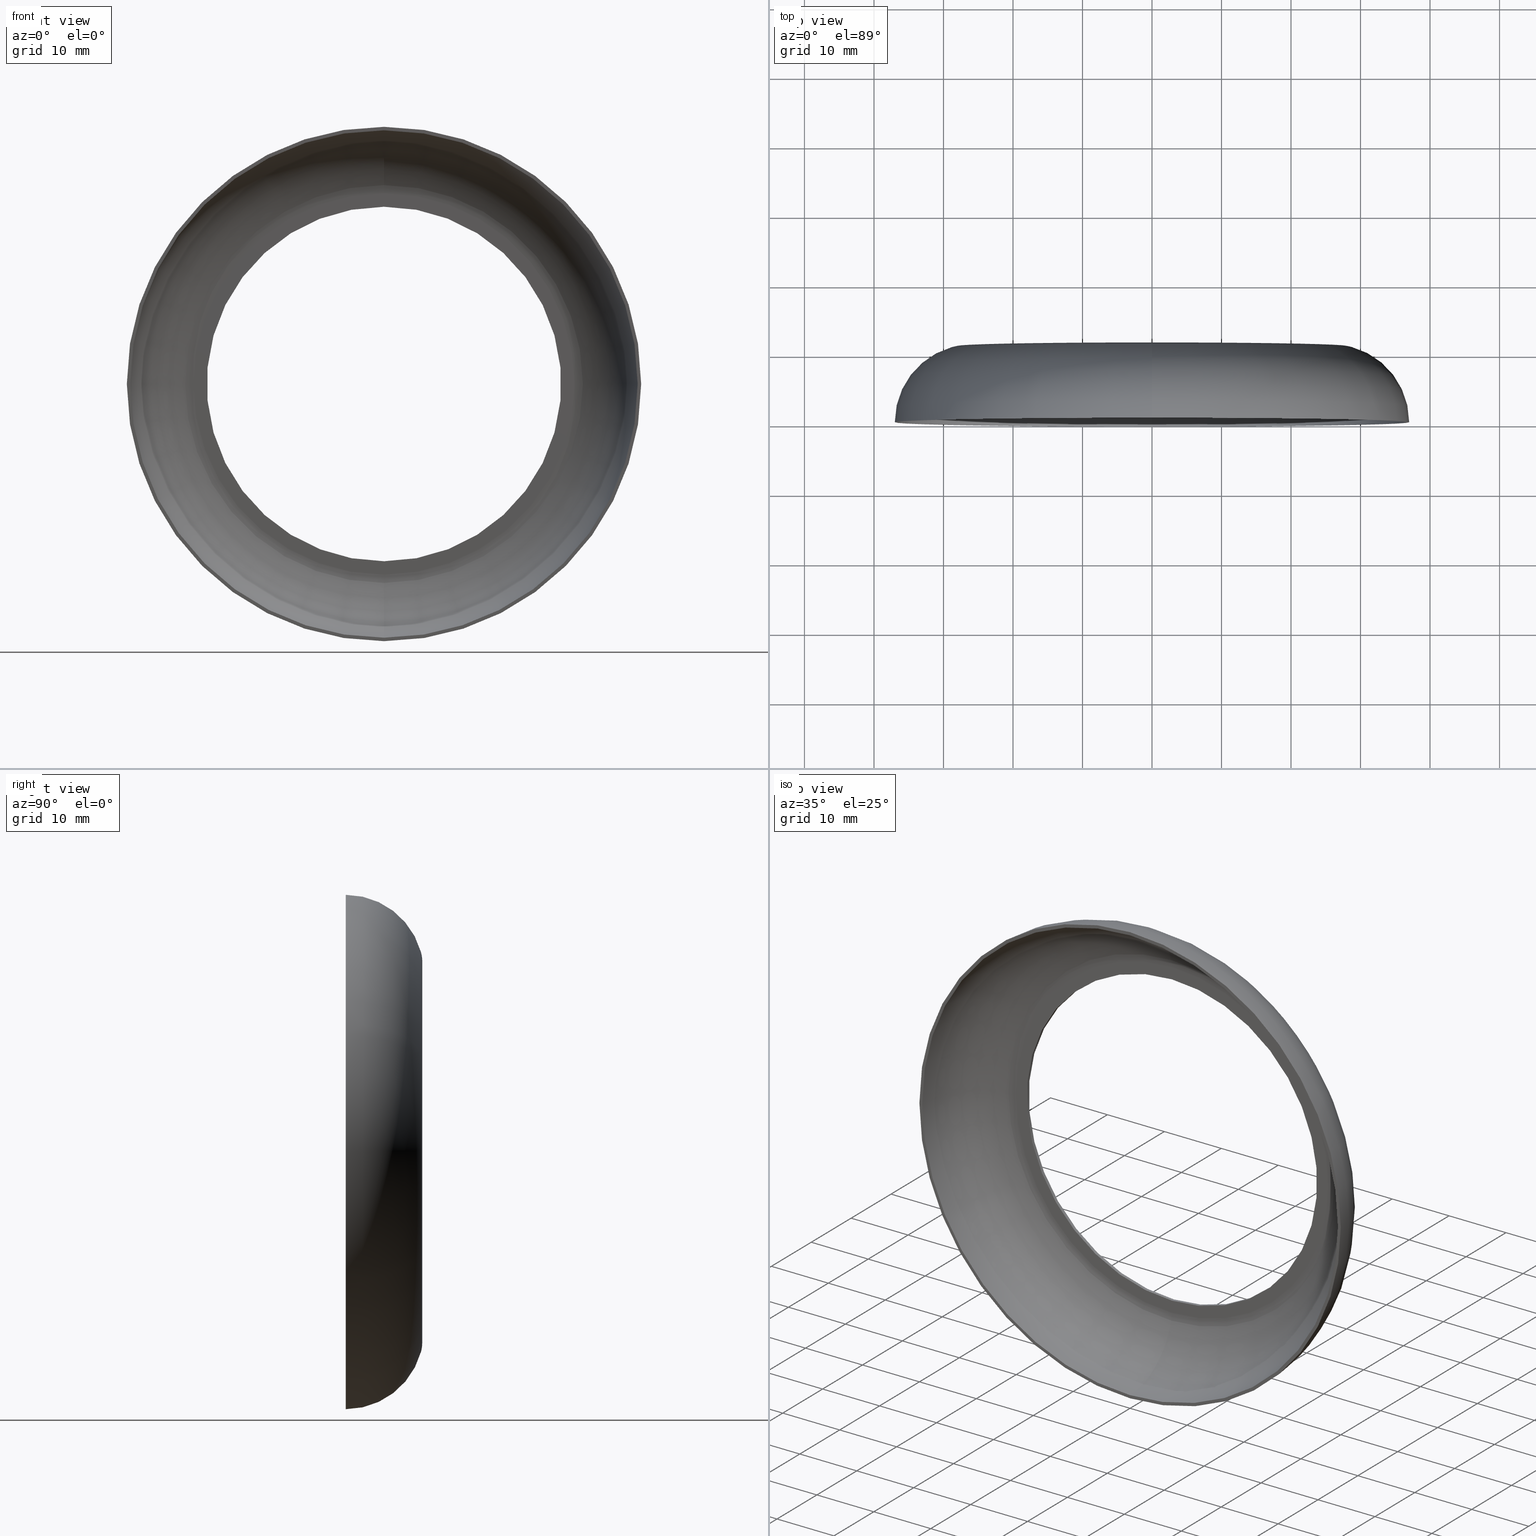
[diagram: canonical four-view strip — front | top / right | iso, engineering-drawing reading convention]
A machine part, canonical four-view strip (front | top / right | iso — engineering-drawing reading convention). The complete STEP part file that produces these views, byte-faithful:
ISO-10303-21;
HEADER;
FILE_DESCRIPTION (( 'STEP AP214' ),
    '1' );
FILE_NAME ('���. KRT501.STEP',
    '2014-06-03T12:35:48',
    ( '' ),
    ( '' ),
    'SwSTEP 2.0',
    'SolidWorks 2014',
    '' );
FILE_SCHEMA (( 'AUTOMOTIVE_DESIGN' ));
ENDSEC;

DATA;
#1 = CIRCLE ( 'NONE', #109, 37.00000000000000000 ) ;
#2 = AXIS2_PLACEMENT_3D ( 'NONE', #231, #300, #261 ) ;
#3 = EDGE_LOOP ( 'NONE', ( #71, #121, #37, #380 ) ) ;
#4 = CARTESIAN_POINT ( 'NONE',  ( 0.0000000000000000000, 11.00000000000000000, 0.0000000000000000000 ) ) ;
#5 = AXIS2_PLACEMENT_3D ( 'NONE', #256, #318, #324 ) ;
#6 = SHAPE_DEFINITION_REPRESENTATION ( #372, #235 ) ;
#7 = CIRCLE ( 'NONE', #363, 10.72222222222221800 ) ;
#8 = PRESENTATION_LAYER_ASSIGNMENT (  '', '', ( #232 ) ) ;
#9 = CARTESIAN_POINT ( 'NONE',  ( 3.122849337825750200E-015, 10.49999999999999800, -25.50000000000000000 ) ) ;
#10 = CARTESIAN_POINT ( 'NONE',  ( 0.0000000000000000000, 0.0000000000000000000, 0.0000000000000000000 ) ) ;
#11 = ADVANCED_FACE ( 'NONE', ( #296 ), #112, .F. ) ;
#12 = DIRECTION ( 'NONE',  ( 0.0000000000000000000, 0.0000000000000000000, 1.000000000000000000 ) ) ;
#13 = EDGE_CURVE ( 'NONE', #140, #62, #18, .T. ) ;
#14 = CIRCLE ( 'NONE', #399, 28.61771092859018900 ) ;
#15 =( NAMED_UNIT ( * ) SI_UNIT ( $, .STERADIAN. ) SOLID_ANGLE_UNIT ( ) );
#16 =( GEOMETRIC_REPRESENTATION_CONTEXT ( 3 ) GLOBAL_UNCERTAINTY_ASSIGNED_CONTEXT ( ( #377 ) ) GLOBAL_UNIT_ASSIGNED_CONTEXT ( ( #19, #104, #397 ) ) REPRESENTATION_CONTEXT ( 'NONE', 'WORKASPACE' ) );
#17 = VECTOR ( 'NONE', #123, 1000.000000000000000 ) ;
#18 = CIRCLE ( 'NONE', #65, 25.50000000000000000 ) ;
#19 =( LENGTH_UNIT ( ) NAMED_UNIT ( * ) SI_UNIT ( .MILLI., .METRE. ) );
#20 = DIRECTION ( 'NONE',  ( 1.000000000000000000, 0.0000000000000000000, 0.0000000000000000000 ) ) ;
#21 = DIRECTION ( 'NONE',  ( 1.000000000000000000, 0.0000000000000000000, -1.224646799147353200E-016 ) ) ;
#22 = ORIENTED_EDGE ( 'NONE', *, *, #87, .T. ) ;
#23 = DIRECTION ( 'NONE',  ( 0.0000000000000000000, 0.0000000000000000000, 1.000000000000000000 ) ) ;
#24 = CARTESIAN_POINT ( 'NONE',  ( 0.0000000000000000000, 0.0000000000000000000, -25.77777777777778200 ) ) ;
#25 = EDGE_LOOP ( 'NONE', ( #381, #52, #22, #278 ) ) ;
#26 =( GEOMETRIC_REPRESENTATION_CONTEXT ( 3 ) GLOBAL_UNCERTAINTY_ASSIGNED_CONTEXT ( ( #284 ) ) GLOBAL_UNIT_ASSIGNED_CONTEXT ( ( #103, #139, #357 ) ) REPRESENTATION_CONTEXT ( 'NONE', 'WORKASPACE' ) );
#27 = CARTESIAN_POINT ( 'NONE',  ( 0.0000000000000000000, 0.0000000000000000000, 0.0000000000000000000 ) ) ;
#28 = CIRCLE ( 'NONE', #217, 25.50000000000000000 ) ;
#29 = ORIENTED_EDGE ( 'NONE', *, *, #246, .T. ) ;
#30 = ORIENTED_EDGE ( 'NONE', *, *, #252, .F. ) ;
#31 = DIRECTION ( 'NONE',  ( 1.000000000000000000, -0.0000000000000000000, 1.224646799147353200E-016 ) ) ;
#32 = EDGE_CURVE ( 'NONE', #188, #316, #394, .T. ) ;
#33 = ORIENTED_EDGE ( 'NONE', *, *, #246, .F. ) ;
#34 = AXIS2_PLACEMENT_3D ( 'NONE', #268, #31, #242 ) ;
#35 = FACE_OUTER_BOUND ( 'NONE', #46, .T. ) ;
#36 = CIRCLE ( 'NONE', #396, 4.500000000000000900 ) ;
#37 = ORIENTED_EDGE ( 'NONE', *, *, #137, .T. ) ;
#38 = ADVANCED_FACE ( 'NONE', ( #400 ), #243, .T. ) ;
#39 = DIRECTION ( 'NONE',  ( 0.0000000000000000000, 0.0000000000000000000, 1.000000000000000000 ) ) ;
#40 = EDGE_CURVE ( 'NONE', #316, #188, #14, .T. ) ;
#41 = CYLINDRICAL_SURFACE ( 'NONE', #265, 25.50000000000000000 ) ;
#42 = EDGE_LOOP ( 'NONE', ( #30, #97 ) ) ;
#43 = PLANE ( 'NONE',  #289 ) ;
#44 = FILL_AREA_STYLE ('',( #390 ) ) ;
#45 = SURFACE_STYLE_FILL_AREA ( #136 ) ;
#46 = EDGE_LOOP ( 'NONE', ( #307, #212, #146, #282 ) ) ;
#47 = VERTEX_POINT ( 'NONE', #240 ) ;
#48 = CARTESIAN_POINT ( 'NONE',  ( 0.0000000000000000000, 11.00000000000000000, 0.0000000000000000000 ) ) ;
#49 = CARTESIAN_POINT ( 'NONE',  ( 0.0000000000000000000, 0.0000000000000000000, 0.0000000000000000000 ) ) ;
#50 = AXIS2_PLACEMENT_3D ( 'NONE', #274, #214, #276 ) ;
#51 = TOROIDAL_SURFACE ( 'NONE', #319, 25.77777777777778200, 10.72222222222221800 ) ;
#52 = ORIENTED_EDGE ( 'NONE', *, *, #178, .T. ) ;
#53 = APPLICATION_PROTOCOL_DEFINITION ( 'draft international standard', 'automotive_design', 1998, #259 ) ;
#54 = EDGE_CURVE ( 'NONE', #224, #320, #211, .T. ) ;
#55 = CYLINDRICAL_SURFACE ( 'NONE', #343, 25.50000000000000000 ) ;
#56 = CARTESIAN_POINT ( 'NONE',  ( 0.0000000000000000000, 0.0000000000000000000, -37.00000000000000000 ) ) ;
#57 = VERTEX_POINT ( 'NONE', #56 ) ;
#58 = VERTEX_POINT ( 'NONE', #85 ) ;
#59 = DIRECTION ( 'NONE',  ( -0.0000000000000000000, -1.000000000000000000, -0.0000000000000000000 ) ) ;
#60 = DIRECTION ( 'NONE',  ( -0.0000000000000000000, -1.000000000000000000, -0.0000000000000000000 ) ) ;
#61 = CARTESIAN_POINT ( 'NONE',  ( 4.531193156845207600E-015, 0.0000000000000000000, 37.00000000000000000 ) ) ;
#62 = VERTEX_POINT ( 'NONE', #158 ) ;
#63 = VERTEX_POINT ( 'NONE', #61 ) ;
#64 = DIRECTION ( 'NONE',  ( 0.0000000000000000000, 0.0000000000000000000, -1.000000000000000000 ) ) ;
#65 = AXIS2_PLACEMENT_3D ( 'NONE', #110, #333, #148 ) ;
#66 = MECHANICAL_DESIGN_GEOMETRIC_PRESENTATION_REPRESENTATION (  '', ( #88 ), #135 ) ;
#67 = DIRECTION ( 'NONE',  ( -0.0000000000000000000, -1.000000000000000000, -0.0000000000000000000 ) ) ;
#68 = CARTESIAN_POINT ( 'NONE',  ( 0.0000000000000000000, 0.0000000000000000000, 25.50000000000000000 ) ) ;
#69 = EDGE_CURVE ( 'NONE', #63, #57, #1, .T. ) ;
#70 = EDGE_LOOP ( 'NONE', ( #266, #164, #290, #166 ) ) ;
#71 = ORIENTED_EDGE ( 'NONE', *, *, #155, .F. ) ;
#72 = CARTESIAN_POINT ( 'NONE',  ( 3.439785782054626300E-015, 11.00000000000000000, -27.42582188602125000 ) ) ;
#73 = CARTESIAN_POINT ( 'NONE',  ( 0.0000000000000000000, 10.49999999999999800, 0.0000000000000000000 ) ) ;
#74 = DIRECTION ( 'NONE',  ( 0.0000000000000000000, 1.000000000000000000, 0.0000000000000000000 ) ) ;
#75 = ADVANCED_FACE ( 'NONE', ( #385, #331 ), #374, .T. ) ;
#76 = AXIS2_PLACEMENT_3D ( 'NONE', #270, #344, #153 ) ;
#77 = DIRECTION ( 'NONE',  ( -0.0000000000000000000, 1.000000000000000000, -0.0000000000000000000 ) ) ;
#78 = ADVANCED_FACE ( 'NONE', ( #303 ), #255, .F. ) ;
#79 = CARTESIAN_POINT ( 'NONE',  ( 4.026035111142166800E-015, 10.82142857142874900, 28.75014304443123000 ) ) ;
#80 = EDGE_LOOP ( 'NONE', ( #132, #281 ) ) ;
#81 = CARTESIAN_POINT ( 'NONE',  ( 0.0000000000000000000, 5.999999999999999100, 0.0000000000000000000 ) ) ;
#82 = AXIS2_PLACEMENT_3D ( 'NONE', #279, #91, #124 ) ;
#83 = CIRCLE ( 'NONE', #187, 36.50000000000000000 ) ;
#84 = DIRECTION ( 'NONE',  ( 0.0000000000000000000, -1.000000000000000000, -0.0000000000000000000 ) ) ;
#85 = CARTESIAN_POINT ( 'NONE',  ( 0.0000000000000000000, 10.49999999999999800, 27.42582188602125000 ) ) ;
#86 = ORIENTED_EDGE ( 'NONE', *, *, #302, .T. ) ;
#87 = EDGE_CURVE ( 'NONE', #348, #220, #156, .T. ) ;
#88 = STYLED_ITEM ( 'NONE', ( #89 ), #264 ) ;
#89 = PRESENTATION_STYLE_ASSIGNMENT (( #352 ) ) ;
#90 = ORIENTED_EDGE ( 'NONE', *, *, #275, .F. ) ;
#91 = DIRECTION ( 'NONE',  ( 0.0000000000000000000, 1.000000000000000000, 0.0000000000000000000 ) ) ;
#92 = AXIS2_PLACEMENT_3D ( 'NONE', #378, #189, #161 ) ;
#93 = EDGE_CURVE ( 'NONE', #224, #219, #234, .T. ) ;
#94 = DIRECTION ( 'NONE',  ( 0.0000000000000000000, 0.0000000000000000000, 1.000000000000000000 ) ) ;
#95 = FACE_OUTER_BOUND ( 'NONE', #70, .T. ) ;
#96 = ORIENTED_EDGE ( 'NONE', *, *, #54, .F. ) ;
#97 = ORIENTED_EDGE ( 'NONE', *, *, #180, .F. ) ;
#98 = EDGE_CURVE ( 'NONE', #320, #63, #177, .T. ) ;
#99 = DIRECTION ( 'NONE',  ( 0.0000000000000000000, 0.0000000000000000000, 1.000000000000000000 ) ) ;
#100 = CARTESIAN_POINT ( 'NONE',  ( 0.0000000000000000000, 0.0000000000000000000, -36.50000000000000000 ) ) ;
#101 = ORIENTED_EDGE ( 'NONE', *, *, #226, .T. ) ;
#102 = CARTESIAN_POINT ( 'NONE',  ( 0.0000000000000000000, 0.0000000000000000000, 0.0000000000000000000 ) ) ;
#103 =( LENGTH_UNIT ( ) NAMED_UNIT ( * ) SI_UNIT ( .MILLI., .METRE. ) );
#104 =( NAMED_UNIT ( * ) PLANE_ANGLE_UNIT ( ) SI_UNIT ( $, .RADIAN. ) );
#105 = SURFACE_STYLE_FILL_AREA ( #44 ) ;
#106 = ORIENTED_EDGE ( 'NONE', *, *, #93, .T. ) ;
#107 = ORIENTED_EDGE ( 'NONE', *, *, #69, .T. ) ;
#108 = CARTESIAN_POINT ( 'NONE',  ( 3.987309812825029800E-015, 10.33928571428571500, 28.61771092859018900 ) ) ;
#109 = AXIS2_PLACEMENT_3D ( 'NONE', #402, #59, #115 ) ;
#110 = CARTESIAN_POINT ( 'NONE',  ( 0.0000000000000000000, 10.49999999999999800, 0.0000000000000000000 ) ) ;
#111 = EDGE_CURVE ( 'NONE', #188, #225, #7, .T. ) ;
#112 = TOROIDAL_SURFACE ( 'NONE', #323, 27.42582188602125000, 4.500000000000000900 ) ;
#113 = PRESENTATION_LAYER_ASSIGNMENT (  '', '', ( #88 ) ) ;
#114 = DIRECTION ( 'NONE',  ( -0.0000000000000000000, -1.000000000000000000, -0.0000000000000000000 ) ) ;
#115 = DIRECTION ( 'NONE',  ( 0.0000000000000000000, 0.0000000000000000000, -1.000000000000000000 ) ) ;
#116 = CIRCLE ( 'NONE', #293, 27.42582188602125000 ) ;
#117 = TOROIDAL_SURFACE ( 'NONE', #82, 27.42582188602125000, 4.500000000000000900 ) ;
#118 = DIRECTION ( 'NONE',  ( -0.0000000000000000000, -1.000000000000000000, -0.0000000000000000000 ) ) ;
#119 = DIRECTION ( 'NONE',  ( 0.0000000000000000000, -0.0000000000000000000, 1.000000000000000000 ) ) ;
#120 = CIRCLE ( 'NONE', #267, 5.000000000000000900 ) ;
#121 = ORIENTED_EDGE ( 'NONE', *, *, #32, .T. ) ;
#122 = EDGE_CURVE ( 'NONE', #225, #365, #83, .T. ) ;
#123 = DIRECTION ( 'NONE',  ( -0.0000000000000000000, 1.000000000000000000, -0.0000000000000000000 ) ) ;
#124 = DIRECTION ( 'NONE',  ( 0.0000000000000000000, 0.0000000000000000000, 1.000000000000000000 ) ) ;
#125 = UNCERTAINTY_MEASURE_WITH_UNIT (LENGTH_MEASURE( 1.000000000000000100E-005 ), #386, 'distance_accuracy_value', 'NONE');
#126 = EDGE_LOOP ( 'NONE', ( #340, #336 ) ) ;
#127 = ADVANCED_FACE ( 'NONE', ( #368, #239 ), #150, .T. ) ;
#128 = CARTESIAN_POINT ( 'NONE',  ( 0.0000000000000000000, 0.0000000000000000000, 0.0000000000000000000 ) ) ;
#129 = DIRECTION ( 'NONE',  ( -0.0000000000000000000, 1.000000000000000000, -0.0000000000000000000 ) ) ;
#130 = CARTESIAN_POINT ( 'NONE',  ( 0.0000000000000000000, 11.00000000000000000, 0.0000000000000000000 ) ) ;
#131 = FACE_BOUND ( 'NONE', #263, .T. ) ;
#132 = ORIENTED_EDGE ( 'NONE', *, *, #122, .F. ) ;
#133 = ADVANCED_FACE ( 'NONE', ( #229 ), #117, .F. ) ;
#134 = DIRECTION ( 'NONE',  ( 0.0000000000000000000, 0.0000000000000000000, 1.000000000000000000 ) ) ;
#135 =( GEOMETRIC_REPRESENTATION_CONTEXT ( 3 ) GLOBAL_UNCERTAINTY_ASSIGNED_CONTEXT ( ( #125 ) ) GLOBAL_UNIT_ASSIGNED_CONTEXT ( ( #386, #195, #15 ) ) REPRESENTATION_CONTEXT ( 'NONE', 'WORKASPACE' ) );
#136 = FILL_AREA_STYLE ('',( #330 ) ) ;
#137 = EDGE_CURVE ( 'NONE', #316, #58, #162, .T. ) ;
#138 = FACE_OUTER_BOUND ( 'NONE', #25, .T. ) ;
#139 =( NAMED_UNIT ( * ) PLANE_ANGLE_UNIT ( ) SI_UNIT ( $, .RADIAN. ) );
#140 = VERTEX_POINT ( 'NONE', #9 ) ;
#141 = ORIENTED_EDGE ( 'NONE', *, *, #54, .T. ) ;
#142 = DIRECTION ( 'NONE',  ( -1.000000000000000000, 0.0000000000000000000, 0.0000000000000000000 ) ) ;
#143 = EDGE_CURVE ( 'NONE', #57, #63, #151, .T. ) ;
#144 = CARTESIAN_POINT ( 'NONE',  ( 0.0000000000000000000, 5.999999999999999100, 0.0000000000000000000 ) ) ;
#145 = DIRECTION ( 'NONE',  ( 0.0000000000000000000, 0.0000000000000000000, 1.000000000000000000 ) ) ;
#146 = ORIENTED_EDGE ( 'NONE', *, *, #111, .T. ) ;
#147 = EDGE_LOOP ( 'NONE', ( #96, #106, #33, #375 ) ) ;
#148 = DIRECTION ( 'NONE',  ( 0.0000000000000000000, 0.0000000000000000000, 1.000000000000000000 ) ) ;
#149 = AXIS2_PLACEMENT_3D ( 'NONE', #215, #245, #401 ) ;
#150 = PLANE ( 'NONE',  #309 ) ;
#151 = CIRCLE ( 'NONE', #351, 37.00000000000000000 ) ;
#152 = AXIS2_PLACEMENT_3D ( 'NONE', #233, #395, #23 ) ;
#153 = DIRECTION ( 'NONE',  ( 0.0000000000000000000, 0.0000000000000000000, -1.000000000000000000 ) ) ;
#154 = DIRECTION ( 'NONE',  ( 0.0000000000000000000, 0.0000000000000000000, -1.000000000000000000 ) ) ;
#155 = EDGE_CURVE ( 'NONE', #188, #304, #36, .T. ) ;
#156 = CIRCLE ( 'NONE', #262, 25.50000000000000000 ) ;
#157 = ORIENTED_EDGE ( 'NONE', *, *, #98, .T. ) ;
#158 = CARTESIAN_POINT ( 'NONE',  ( 0.0000000000000000000, 10.49999999999999800, 25.50000000000000000 ) ) ;
#159 = DIRECTION ( 'NONE',  ( 0.0000000000000000000, 1.000000000000000000, 0.0000000000000000000 ) ) ;
#160 = EDGE_CURVE ( 'NONE', #365, #225, #327, .T. ) ;
#161 = DIRECTION ( 'NONE',  ( 0.0000000000000000000, 0.0000000000000000000, 1.000000000000000000 ) ) ;
#162 = CIRCLE ( 'NONE', #92, 4.500000000000000900 ) ;
#163 = EDGE_CURVE ( 'NONE', #62, #220, #359, .T. ) ;
#164 = ORIENTED_EDGE ( 'NONE', *, *, #221, .F. ) ;
#165 = CARTESIAN_POINT ( 'NONE',  ( 0.0000000000000000000, 10.49999999999999800, 0.0000000000000000000 ) ) ;
#166 = ORIENTED_EDGE ( 'NONE', *, *, #371, .T. ) ;
#167 = DIRECTION ( 'NONE',  ( 0.0000000000000000000, 1.000000000000000000, 0.0000000000000000000 ) ) ;
#168 = CARTESIAN_POINT ( 'NONE',  ( 3.122849337825750200E-015, 0.0000000000000000000, -25.50000000000000000 ) ) ;
#169 = CARTESIAN_POINT ( 'NONE',  ( 0.0000000000000000000, 10.49999999999999800, 0.0000000000000000000 ) ) ;
#170 = EDGE_LOOP ( 'NONE', ( #369, #244, #398, #90 ) ) ;
#171 = SURFACE_SIDE_STYLE ('',( #45 ) ) ;
#172 = DIRECTION ( 'NONE',  ( 0.0000000000000000000, 0.0000000000000000000, 1.000000000000000000 ) ) ;
#173 = CARTESIAN_POINT ( 'NONE',  ( 3.156867304468733000E-015, 0.0000000000000000000, 25.77777777777778200 ) ) ;
#174 = ORIENTED_EDGE ( 'NONE', *, *, #315, .T. ) ;
#175 = EDGE_LOOP ( 'NONE', ( #141, #157, #313, #360 ) ) ;
#176 = AXIS2_PLACEMENT_3D ( 'NONE', #346, #376, #186 ) ;
#177 = CIRCLE ( 'NONE', #149, 11.22222222222221800 ) ;
#178 = EDGE_CURVE ( 'NONE', #140, #348, #218, .T. ) ;
#179 = DIRECTION ( 'NONE',  ( 0.0000000000000000000, 0.0000000000000000000, 1.000000000000000000 ) ) ;
#180 = EDGE_CURVE ( 'NONE', #304, #58, #247, .T. ) ;
#181 = CIRCLE ( 'NONE', #237, 25.50000000000000000 ) ;
#182 = ORIENTED_EDGE ( 'NONE', *, *, #40, .T. ) ;
#183 = ORIENTED_EDGE ( 'NONE', *, *, #155, .T. ) ;
#184 = DIRECTION ( 'NONE',  ( 0.0000000000000000000, 0.0000000000000000000, -1.000000000000000000 ) ) ;
#185 = CARTESIAN_POINT ( 'NONE',  ( 0.0000000000000000000, 0.0000000000000000000, 0.0000000000000000000 ) ) ;
#186 = DIRECTION ( 'NONE',  ( 0.0000000000000000000, 0.0000000000000000000, -1.000000000000000000 ) ) ;
#187 = AXIS2_PLACEMENT_3D ( 'NONE', #373, #60, #184 ) ;
#188 = VERTEX_POINT ( 'NONE', #216 ) ;
#189 = DIRECTION ( 'NONE',  ( -1.000000000000000000, 0.0000000000000000000, 0.0000000000000000000 ) ) ;
#190 = CIRCLE ( 'NONE', #393, 10.72222222222221800 ) ;
#191 = ORIENTED_EDGE ( 'NONE', *, *, #69, .F. ) ;
#192 = CARTESIAN_POINT ( 'NONE',  ( 0.0000000000000000000, 10.82142857142874900, -28.75014304443123000 ) ) ;
#193 = DIRECTION ( 'NONE',  ( -0.0000000000000000000, 1.000000000000000000, -0.0000000000000000000 ) ) ;
#194 = AXIS2_PLACEMENT_3D ( 'NONE', #128, #317, #384 ) ;
#195 =( NAMED_UNIT ( * ) PLANE_ANGLE_UNIT ( ) SI_UNIT ( $, .RADIAN. ) );
#196 = ORIENTED_EDGE ( 'NONE', *, *, #40, .F. ) ;
#197 = AXIS2_PLACEMENT_3D ( 'NONE', #24, #142, #392 ) ;
#198 = CARTESIAN_POINT ( 'NONE',  ( 3.431676653716177400E-015, 10.49999999999999800, -27.42582188602125000 ) ) ;
#199 = CARTESIAN_POINT ( 'NONE',  ( 0.0000000000000000000, 0.0000000000000000000, 0.0000000000000000000 ) ) ;
#200 = ADVANCED_FACE ( 'NONE', ( #379 ), #354, .T. ) ;
#201 = ORIENTED_EDGE ( 'NONE', *, *, #180, .T. ) ;
#202 = ORIENTED_EDGE ( 'NONE', *, *, #143, .T. ) ;
#203 = DIRECTION ( 'NONE',  ( 0.0000000000000000000, 1.000000000000000000, 0.0000000000000000000 ) ) ;
#204 = EDGE_CURVE ( 'NONE', #320, #47, #120, .T. ) ;
#205 = DIRECTION ( 'NONE',  ( 0.0000000000000000000, -0.0000000000000000000, 1.000000000000000000 ) ) ;
#206 = DIRECTION ( 'NONE',  ( 0.0000000000000000000, 0.0000000000000000000, 1.000000000000000000 ) ) ;
#207 = CIRCLE ( 'NONE', #355, 27.42582188602125000 ) ;
#208 = ORIENTED_EDGE ( 'NONE', *, *, #111, .F. ) ;
#209 = DIRECTION ( 'NONE',  ( -1.000000000000000000, 0.0000000000000000000, 0.0000000000000000000 ) ) ;
#210 = COLOUR_RGB ( '',0.7921568627450980000, 0.8196078431372548800, 0.9333333333333333500 ) ;
#211 = CIRCLE ( 'NONE', #76, 28.75014304443123000 ) ;
#212 = ORIENTED_EDGE ( 'NONE', *, *, #32, .F. ) ;
#213 = CARTESIAN_POINT ( 'NONE',  ( 0.0000000000000000000, 11.00000000000000000, 0.0000000000000000000 ) ) ;
#214 = DIRECTION ( 'NONE',  ( -0.0000000000000000000, -1.000000000000000000, -0.0000000000000000000 ) ) ;
#215 = CARTESIAN_POINT ( 'NONE',  ( 3.156867304468733000E-015, 0.0000000000000000000, 25.77777777777778200 ) ) ;
#216 = CARTESIAN_POINT ( 'NONE',  ( 0.0000000000000000000, 10.33928571428571500, -28.61771092859018900 ) ) ;
#217 = AXIS2_PLACEMENT_3D ( 'NONE', #48, #361, #172 ) ;
#218 = LINE ( 'NONE', #168, #349 ) ;
#219 = VERTEX_POINT ( 'NONE', #72 ) ;
#220 = VERTEX_POINT ( 'NONE', #285 ) ;
#221 = EDGE_CURVE ( 'NONE', #62, #140, #181, .T. ) ;
#222 = SURFACE_SIDE_STYLE ('',( #105 ) ) ;
#223 = CARTESIAN_POINT ( 'NONE',  ( 0.0000000000000000000, 5.999999999999999100, 27.42582188602125000 ) ) ;
#224 = VERTEX_POINT ( 'NONE', #192 ) ;
#225 = VERTEX_POINT ( 'NONE', #100 ) ;
#226 = EDGE_CURVE ( 'NONE', #320, #224, #339, .T. ) ;
#227 = DIRECTION ( 'NONE',  ( 0.0000000000000000000, 0.0000000000000000000, 1.000000000000000000 ) ) ;
#228 = DIRECTION ( 'NONE',  ( 0.0000000000000000000, 0.0000000000000000000, 1.000000000000000000 ) ) ;
#229 = FACE_OUTER_BOUND ( 'NONE', #3, .T. ) ;
#230 = APPLICATION_PROTOCOL_DEFINITION ( 'draft international standard', 'automotive_design', 1998, #294 ) ;
#231 = CARTESIAN_POINT ( 'NONE',  ( 0.0000000000000000000, 0.0000000000000000000, 0.0000000000000000000 ) ) ;
#232 = STYLED_ITEM ( 'NONE', ( #347 ), #235 ) ;
#233 = CARTESIAN_POINT ( 'NONE',  ( 0.0000000000000000000, 11.00000000000000000, 0.0000000000000000000 ) ) ;
#234 = CIRCLE ( 'NONE', #34, 5.000000000000000900 ) ;
#235 = ADVANCED_BREP_SHAPE_REPRESENTATION ( '�. KRT501', ( #264, #273 ), #16 ) ;
#236 = ORIENTED_EDGE ( 'NONE', *, *, #160, .T. ) ;
#237 = AXIS2_PLACEMENT_3D ( 'NONE', #169, #253, #94 ) ;
#238 = FACE_OUTER_BOUND ( 'NONE', #42, .T. ) ;
#239 = FACE_OUTER_BOUND ( 'NONE', #350, .T. ) ;
#240 = CARTESIAN_POINT ( 'NONE',  ( 0.0000000000000000000, 11.00000000000000000, 27.42582188602125000 ) ) ;
#241 = AXIS2_PLACEMENT_3D ( 'NONE', #311, #310, #338 ) ;
#242 = DIRECTION ( 'NONE',  ( 1.224646799147353500E-016, 0.0000000000000000000, -1.000000000000000000 ) ) ;
#243 = TOROIDAL_SURFACE ( 'NONE', #241, 27.42582188602125000, 5.000000000000000000 ) ;
#244 = ORIENTED_EDGE ( 'NONE', *, *, #226, .F. ) ;
#245 = DIRECTION ( 'NONE',  ( 1.000000000000000000, 0.0000000000000000000, -1.224646799147353200E-016 ) ) ;
#246 = EDGE_CURVE ( 'NONE', #47, #219, #116, .T. ) ;
#247 = CIRCLE ( 'NONE', #389, 27.42582188602125000 ) ;
#248 = DIRECTION ( 'NONE',  ( 1.000000000000000000, -0.0000000000000000000, 1.224646799147353200E-016 ) ) ;
#249 = EDGE_LOOP ( 'NONE', ( #196, #174, #236, #208 ) ) ;
#250 = DIRECTION ( 'NONE',  ( -1.000000000000000000, 0.0000000000000000000, 0.0000000000000000000 ) ) ;
#251 = EDGE_LOOP ( 'NONE', ( #182, #183, #201, #312 ) ) ;
#252 = EDGE_CURVE ( 'NONE', #58, #304, #207, .T. ) ;
#253 = DIRECTION ( 'NONE',  ( 0.0000000000000000000, 1.000000000000000000, 0.0000000000000000000 ) ) ;
#254 = ADVANCED_FACE ( 'NONE', ( #95 ), #41, .F. ) ;
#255 = TOROIDAL_SURFACE ( 'NONE', #334, 25.77777777777778200, 10.72222222222221800 ) ;
#256 = CARTESIAN_POINT ( 'NONE',  ( 0.0000000000000000000, 10.82142857142874900, 0.0000000000000000000 ) ) ;
#257 = MECHANICAL_DESIGN_GEOMETRIC_PRESENTATION_REPRESENTATION (  '', ( #232 ), #26 ) ;
#258 = SURFACE_STYLE_USAGE ( .BOTH. , #171 ) ;
#259 = APPLICATION_CONTEXT ( 'automotive_design' ) ;
#260 = FACE_OUTER_BOUND ( 'NONE', #387, .T. ) ;
#261 = DIRECTION ( 'NONE',  ( 0.0000000000000000000, 0.0000000000000000000, -1.000000000000000000 ) ) ;
#262 = AXIS2_PLACEMENT_3D ( 'NONE', #4, #370, #179 ) ;
#263 = EDGE_LOOP ( 'NONE', ( #297, #341 ) ) ;
#264 = MANIFOLD_SOLID_BREP ( '�����-��������1', #332 ) ;
#265 = AXIS2_PLACEMENT_3D ( 'NONE', #286, #129, #99 ) ;
#266 = ORIENTED_EDGE ( 'NONE', *, *, #178, .F. ) ;
#267 = AXIS2_PLACEMENT_3D ( 'NONE', #223, #250, #39 ) ;
#268 = CARTESIAN_POINT ( 'NONE',  ( 3.358694498670134500E-015, 5.999999999999999100, -27.42582188602125000 ) ) ;
#269 = TOROIDAL_SURFACE ( 'NONE', #2, 25.77777777777778200, 11.22222222222221800 ) ;
#270 = CARTESIAN_POINT ( 'NONE',  ( 0.0000000000000000000, 10.82142857142874900, 0.0000000000000000000 ) ) ;
#271 = EDGE_LOOP ( 'NONE', ( #202, #107 ) ) ;
#272 = ORIENTED_EDGE ( 'NONE', *, *, #275, .T. ) ;
#273 = AXIS2_PLACEMENT_3D ( 'NONE', #199, #362, #20 ) ;
#274 = CARTESIAN_POINT ( 'NONE',  ( 0.0000000000000000000, 10.33928571428571500, 0.0000000000000000000 ) ) ;
#275 = EDGE_CURVE ( 'NONE', #219, #47, #288, .T. ) ;
#276 = DIRECTION ( 'NONE',  ( 0.0000000000000000000, 0.0000000000000000000, -1.000000000000000000 ) ) ;
#277 = TOROIDAL_SURFACE ( 'NONE', #366, 27.42582188602125000, 5.000000000000000000 ) ;
#278 = ORIENTED_EDGE ( 'NONE', *, *, #163, .F. ) ;
#279 = CARTESIAN_POINT ( 'NONE',  ( 0.0000000000000000000, 5.999999999999999100, 0.0000000000000000000 ) ) ;
#280 = COLOUR_RGB ( '',0.7921568627450980000, 0.8196078431372548800, 0.9333333333333333500 ) ;
#281 = ORIENTED_EDGE ( 'NONE', *, *, #160, .F. ) ;
#282 = ORIENTED_EDGE ( 'NONE', *, *, #122, .T. ) ;
#283 = DIRECTION ( 'NONE',  ( 1.224646799147353700E-016, 0.0000000000000000000, -1.000000000000000000 ) ) ;
#284 = UNCERTAINTY_MEASURE_WITH_UNIT (LENGTH_MEASURE( 1.000000000000000100E-005 ), #103, 'distance_accuracy_value', 'NONE');
#285 = CARTESIAN_POINT ( 'NONE',  ( 0.0000000000000000000, 11.00000000000000000, 25.50000000000000000 ) ) ;
#286 = CARTESIAN_POINT ( 'NONE',  ( 0.0000000000000000000, 0.0000000000000000000, 0.0000000000000000000 ) ) ;
#287 = ADVANCED_FACE ( 'NONE', ( #131, #238 ), #43, .F. ) ;
#288 = CIRCLE ( 'NONE', #152, 27.42582188602125000 ) ;
#289 = AXIS2_PLACEMENT_3D ( 'NONE', #291, #203, #205 ) ;
#290 = ORIENTED_EDGE ( 'NONE', *, *, #163, .T. ) ;
#291 = CARTESIAN_POINT ( 'NONE',  ( 0.0000000000000000000, 10.49999999999999800, 0.0000000000000000000 ) ) ;
#292 = ADVANCED_FACE ( 'NONE', ( #138 ), #55, .F. ) ;
#293 = AXIS2_PLACEMENT_3D ( 'NONE', #130, #74, #12 ) ;
#294 = APPLICATION_CONTEXT ( 'automotive_design' ) ;
#295 = DIRECTION ( 'NONE',  ( 0.0000000000000000000, 1.000000000000000000, 0.0000000000000000000 ) ) ;
#296 = FACE_OUTER_BOUND ( 'NONE', #251, .T. ) ;
#297 = ORIENTED_EDGE ( 'NONE', *, *, #221, .T. ) ;
#298 = CARTESIAN_POINT ( 'NONE',  ( 3.122849337825750200E-015, 11.00000000000000000, -25.50000000000000000 ) ) ;
#299 = PRODUCT_DEFINITION_FORMATION_WITH_SPECIFIED_SOURCE ( 'ANY', '', #335, .NOT_KNOWN. ) ;
#300 = DIRECTION ( 'NONE',  ( -0.0000000000000000000, -1.000000000000000000, -0.0000000000000000000 ) ) ;
#301 = DIRECTION ( 'NONE',  ( 0.0000000000000000000, 1.000000000000000000, 0.0000000000000000000 ) ) ;
#302 = EDGE_CURVE ( 'NONE', #224, #57, #306, .T. ) ;
#303 = FACE_OUTER_BOUND ( 'NONE', #249, .T. ) ;
#304 = VERTEX_POINT ( 'NONE', #198 ) ;
#305 = PRODUCT_DEFINITION ( 'UNKNOWN', '', #299, #388 ) ;
#306 = CIRCLE ( 'NONE', #197, 11.22222222222221800 ) ;
#307 = ORIENTED_EDGE ( 'NONE', *, *, #315, .F. ) ;
#308 = DIRECTION ( 'NONE',  ( 0.0000000000000000000, 0.0000000000000000000, 1.000000000000000000 ) ) ;
#309 = AXIS2_PLACEMENT_3D ( 'NONE', #213, #159, #119 ) ;
#310 = DIRECTION ( 'NONE',  ( 0.0000000000000000000, 1.000000000000000000, 0.0000000000000000000 ) ) ;
#311 = CARTESIAN_POINT ( 'NONE',  ( 0.0000000000000000000, 5.999999999999999100, 0.0000000000000000000 ) ) ;
#312 = ORIENTED_EDGE ( 'NONE', *, *, #137, .F. ) ;
#313 = ORIENTED_EDGE ( 'NONE', *, *, #143, .F. ) ;
#314 = DIRECTION ( 'NONE',  ( 0.0000000000000000000, 0.0000000000000000000, -1.000000000000000000 ) ) ;
#315 = EDGE_CURVE ( 'NONE', #316, #365, #190, .T. ) ;
#316 = VERTEX_POINT ( 'NONE', #108 ) ;
#317 = DIRECTION ( 'NONE',  ( -0.0000000000000000000, -1.000000000000000000, -0.0000000000000000000 ) ) ;
#318 = DIRECTION ( 'NONE',  ( -0.0000000000000000000, -1.000000000000000000, -0.0000000000000000000 ) ) ;
#319 = AXIS2_PLACEMENT_3D ( 'NONE', #102, #356, #328 ) ;
#320 = VERTEX_POINT ( 'NONE', #79 ) ;
#321 = ORIENTED_EDGE ( 'NONE', *, *, #98, .F. ) ;
#322 = DIRECTION ( 'NONE',  ( 0.0000000000000000000, 1.000000000000000000, 0.0000000000000000000 ) ) ;
#323 = AXIS2_PLACEMENT_3D ( 'NONE', #81, #301, #145 ) ;
#324 = DIRECTION ( 'NONE',  ( 0.0000000000000000000, 0.0000000000000000000, -1.000000000000000000 ) ) ;
#325 = PRODUCT_CONTEXT ( 'NONE', #294, 'mechanical' ) ;
#326 = PRODUCT_RELATED_PRODUCT_CATEGORY ( 'part', '', ( #335 ) ) ;
#327 = CIRCLE ( 'NONE', #176, 36.50000000000000000 ) ;
#328 = DIRECTION ( 'NONE',  ( 0.0000000000000000000, 0.0000000000000000000, -1.000000000000000000 ) ) ;
#329 = DIRECTION ( 'NONE',  ( -1.224646799147353500E-016, 0.0000000000000000000, -1.000000000000000000 ) ) ;
#330 = FILL_AREA_STYLE_COLOUR ( '', #280 ) ;
#331 = FACE_OUTER_BOUND ( 'NONE', #271, .T. ) ;
#332 = CLOSED_SHELL ( 'NONE', ( #292, #11, #78, #38, #200, #75, #391, #127, #353, #383, #287, #133, #254 ) ) ;
#333 = DIRECTION ( 'NONE',  ( 0.0000000000000000000, 1.000000000000000000, 0.0000000000000000000 ) ) ;
#334 = AXIS2_PLACEMENT_3D ( 'NONE', #185, #114, #342 ) ;
#335 = PRODUCT ( '���. KRT501', '���. KRT501', '', ( #325 ) ) ;
#336 = ORIENTED_EDGE ( 'NONE', *, *, #87, .F. ) ;
#337 = CARTESIAN_POINT ( 'NONE',  ( 0.0000000000000000000, 10.33928571428571500, 0.0000000000000000000 ) ) ;
#338 = DIRECTION ( 'NONE',  ( 0.0000000000000000000, 0.0000000000000000000, 1.000000000000000000 ) ) ;
#339 = CIRCLE ( 'NONE', #5, 28.75014304443123000 ) ;
#340 = ORIENTED_EDGE ( 'NONE', *, *, #371, .F. ) ;
#341 = ORIENTED_EDGE ( 'NONE', *, *, #13, .T. ) ;
#342 = DIRECTION ( 'NONE',  ( 0.0000000000000000000, 0.0000000000000000000, -1.000000000000000000 ) ) ;
#343 = AXIS2_PLACEMENT_3D ( 'NONE', #49, #77, #206 ) ;
#344 = DIRECTION ( 'NONE',  ( -0.0000000000000000000, -1.000000000000000000, -0.0000000000000000000 ) ) ;
#345 = AXIS2_PLACEMENT_3D ( 'NONE', #27, #84, #154 ) ;
#346 = CARTESIAN_POINT ( 'NONE',  ( 0.0000000000000000000, 0.0000000000000000000, 0.0000000000000000000 ) ) ;
#347 = PRESENTATION_STYLE_ASSIGNMENT (( #258 ) ) ;
#348 = VERTEX_POINT ( 'NONE', #298 ) ;
#349 = VECTOR ( 'NONE', #193, 1000.000000000000000 ) ;
#350 = EDGE_LOOP ( 'NONE', ( #29, #272 ) ) ;
#351 = AXIS2_PLACEMENT_3D ( 'NONE', #10, #67, #314 ) ;
#352 = SURFACE_STYLE_USAGE ( .BOTH. , #222 ) ;
#353 = ADVANCED_FACE ( 'NONE', ( #364 ), #277, .T. ) ;
#354 = TOROIDAL_SURFACE ( 'NONE', #194, 25.77777777777778200, 11.22222222222221800 ) ;
#355 = AXIS2_PLACEMENT_3D ( 'NONE', #165, #167, #227 ) ;
#356 = DIRECTION ( 'NONE',  ( -0.0000000000000000000, -1.000000000000000000, -0.0000000000000000000 ) ) ;
#357 =( NAMED_UNIT ( * ) SI_UNIT ( $, .STERADIAN. ) SOLID_ANGLE_UNIT ( ) );
#358 = CARTESIAN_POINT ( 'NONE',  ( 4.469960816887838400E-015, 0.0000000000000000000, 36.50000000000000000 ) ) ;
#359 = LINE ( 'NONE', #68, #17 ) ;
#360 = ORIENTED_EDGE ( 'NONE', *, *, #302, .F. ) ;
#361 = DIRECTION ( 'NONE',  ( 0.0000000000000000000, 1.000000000000000000, 0.0000000000000000000 ) ) ;
#362 = DIRECTION ( 'NONE',  ( 0.0000000000000000000, 0.0000000000000000000, 1.000000000000000000 ) ) ;
#363 = AXIS2_PLACEMENT_3D ( 'NONE', #367, #209, #308 ) ;
#364 = FACE_OUTER_BOUND ( 'NONE', #170, .T. ) ;
#365 = VERTEX_POINT ( 'NONE', #358 ) ;
#366 = AXIS2_PLACEMENT_3D ( 'NONE', #144, #295, #228 ) ;
#367 = CARTESIAN_POINT ( 'NONE',  ( 0.0000000000000000000, 0.0000000000000000000, -25.77777777777778200 ) ) ;
#368 = FACE_BOUND ( 'NONE', #126, .T. ) ;
#369 = ORIENTED_EDGE ( 'NONE', *, *, #93, .F. ) ;
#370 = DIRECTION ( 'NONE',  ( 0.0000000000000000000, 1.000000000000000000, 0.0000000000000000000 ) ) ;
#371 = EDGE_CURVE ( 'NONE', #220, #348, #28, .T. ) ;
#372 = PRODUCT_DEFINITION_SHAPE ( 'NONE', 'NONE',  #305 ) ;
#373 = CARTESIAN_POINT ( 'NONE',  ( 0.0000000000000000000, 0.0000000000000000000, 0.0000000000000000000 ) ) ;
#374 = PLANE ( 'NONE',  #345 ) ;
#375 = ORIENTED_EDGE ( 'NONE', *, *, #204, .F. ) ;
#376 = DIRECTION ( 'NONE',  ( -0.0000000000000000000, -1.000000000000000000, -0.0000000000000000000 ) ) ;
#377 = UNCERTAINTY_MEASURE_WITH_UNIT (LENGTH_MEASURE( 1.000000000000000100E-005 ), #19, 'distance_accuracy_value', 'NONE');
#378 = CARTESIAN_POINT ( 'NONE',  ( 0.0000000000000000000, 5.999999999999999100, 27.42582188602125000 ) ) ;
#379 = FACE_OUTER_BOUND ( 'NONE', #175, .T. ) ;
#380 = ORIENTED_EDGE ( 'NONE', *, *, #252, .T. ) ;
#381 = ORIENTED_EDGE ( 'NONE', *, *, #13, .F. ) ;
#382 = CARTESIAN_POINT ( 'NONE',  ( 3.358694498670134500E-015, 5.999999999999999100, -27.42582188602125000 ) ) ;
#383 = ADVANCED_FACE ( 'NONE', ( #35 ), #51, .F. ) ;
#384 = DIRECTION ( 'NONE',  ( 0.0000000000000000000, 0.0000000000000000000, -1.000000000000000000 ) ) ;
#385 = FACE_BOUND ( 'NONE', #80, .T. ) ;
#386 =( LENGTH_UNIT ( ) NAMED_UNIT ( * ) SI_UNIT ( .MILLI., .METRE. ) );
#387 = EDGE_LOOP ( 'NONE', ( #321, #101, #86, #191 ) ) ;
#388 = PRODUCT_DEFINITION_CONTEXT ( 'detailed design', #259, 'design' ) ;
#389 = AXIS2_PLACEMENT_3D ( 'NONE', #73, #322, #134 ) ;
#390 = FILL_AREA_STYLE_COLOUR ( '', #210 ) ;
#391 = ADVANCED_FACE ( 'NONE', ( #260 ), #269, .T. ) ;
#392 = DIRECTION ( 'NONE',  ( 0.0000000000000000000, 0.0000000000000000000, 1.000000000000000000 ) ) ;
#393 = AXIS2_PLACEMENT_3D ( 'NONE', #173, #21, #329 ) ;
#394 = CIRCLE ( 'NONE', #50, 28.61771092859018900 ) ;
#395 = DIRECTION ( 'NONE',  ( 0.0000000000000000000, 1.000000000000000000, 0.0000000000000000000 ) ) ;
#396 = AXIS2_PLACEMENT_3D ( 'NONE', #382, #248, #283 ) ;
#397 =( NAMED_UNIT ( * ) SI_UNIT ( $, .STERADIAN. ) SOLID_ANGLE_UNIT ( ) );
#398 = ORIENTED_EDGE ( 'NONE', *, *, #204, .T. ) ;
#399 = AXIS2_PLACEMENT_3D ( 'NONE', #337, #118, #64 ) ;
#400 = FACE_OUTER_BOUND ( 'NONE', #147, .T. ) ;
#401 = DIRECTION ( 'NONE',  ( -1.224646799147353500E-016, 0.0000000000000000000, -1.000000000000000000 ) ) ;
#402 = CARTESIAN_POINT ( 'NONE',  ( 0.0000000000000000000, 0.0000000000000000000, 0.0000000000000000000 ) ) ;
ENDSEC;
END-ISO-10303-21;
